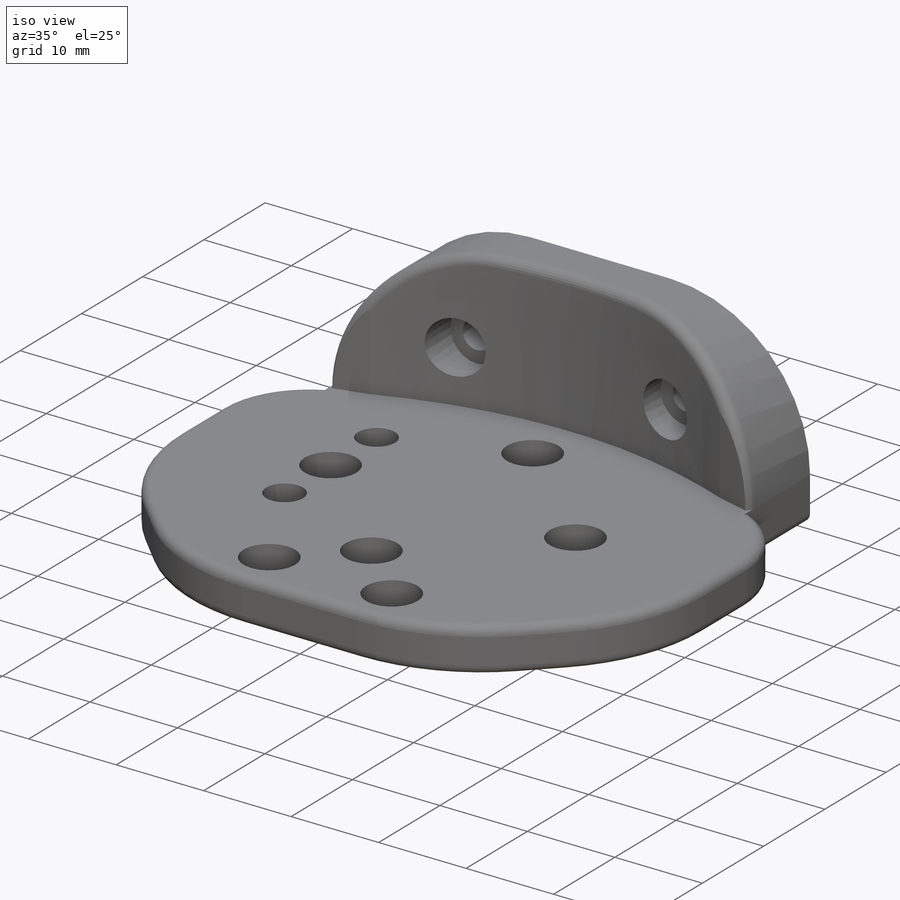
[diagram: iso view]
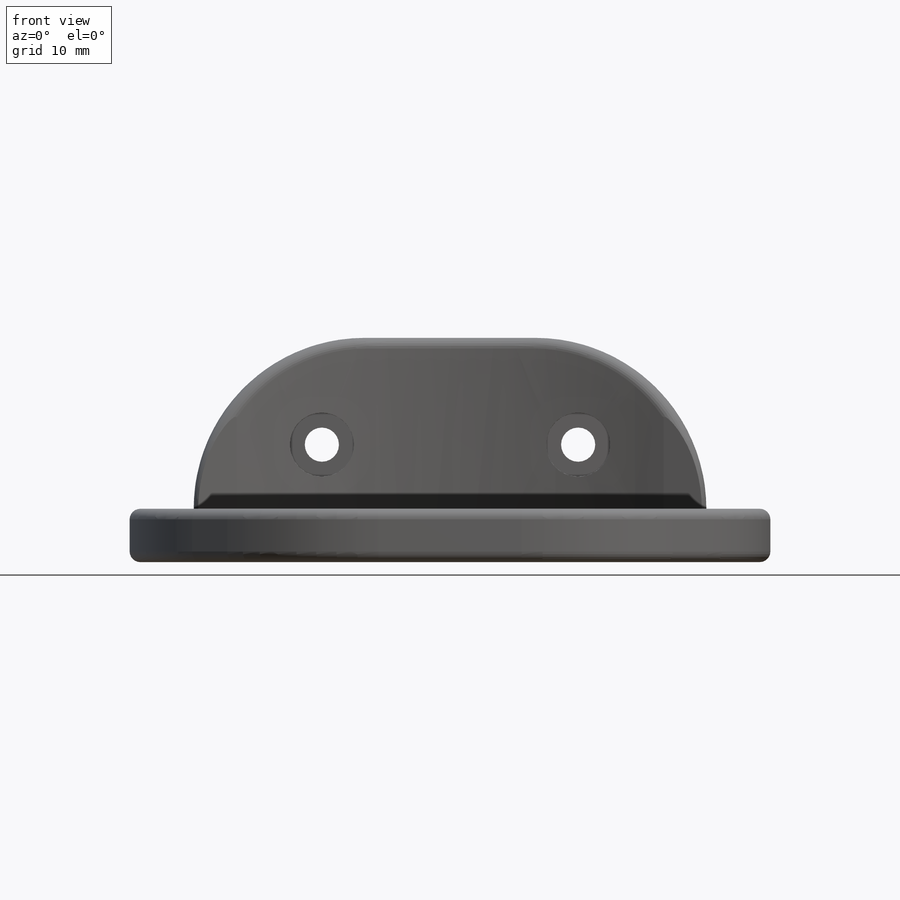
[diagram: front view]
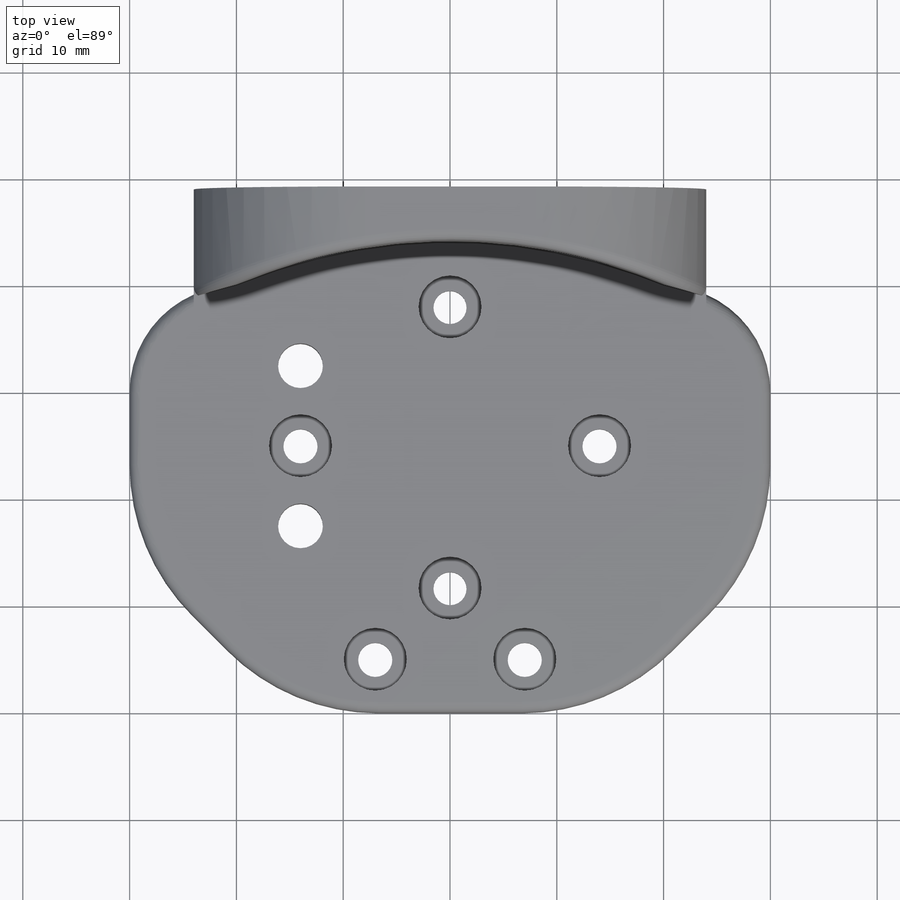
[diagram: top view]
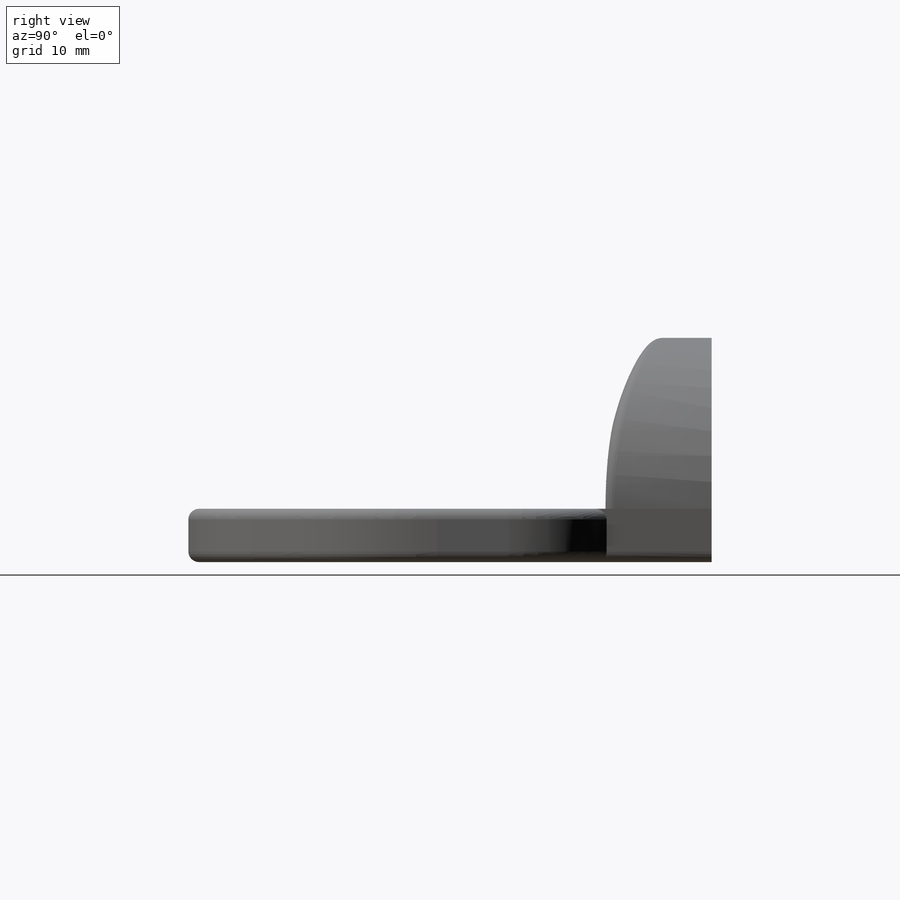
[diagram: right view]
SOLIDWORKS PART (.sldprt)
format: sldprt  version: not decoded by parser v0  size: 541,696 bytes
history: native  units: mm
features: sketch x9, cut_extrude x5, fillet x5, plane x4, extrude x3, material x1 (+9 scaffold rows collapsed)
feature tree (36):
  scaffold x9  (default folders/planes/origin — collapsed)
  material  "Material <sin especificar>"
  plane  "Alzado"
  plane  "Planta"
  plane  "Vista lateral"
  sketch  "Croquis1"  dims[c1.D5=3.2mm c1.D8=15.0mm c1.D10=20.0mm c1.D11=10.0mm c1.D1=60.0mm c1.D2=40.0mm c1.D3=7.0mm c1.D4=20.0mm c1.D6=15.0mm c1.D7=16.0mm c2.D8=15.0mm c2.D9=15.0mm c2.D12=4.0mm]
  extrude  "Saliente-Extruir1"  Depth=5mm
  extrude  "Saliente-Extruir2"  [1 undecoded]
  sketch  "Croquis1<3>"  dims[D1=5.0mm]
  sketch  "Croquis5"  dims[D1=3.1mm D2=5.9mm D3=6.0mm]
  cut_extrude  "Cortar-Extruir3"  Depth=8mm
  sketch  "Croquis6"  dims[D1=5.9mm]
  cut_extrude  "Cortar-Extruir4"  Depth=3.2mm
  sketch  "Croquis7"  dims[D1=3.1mm D2=7.0mm]
  sketch  "Croquis10"  dims[c1.D1=48.0mm c1.D2=10.05mm c1.D3=2.0mm c1.D4=6.0mm c2.D3=0.95mm]
  extrude  "Saliente-Extruir4"  Depth=16mm
  fillet  "Redondeo2"  Radius=16mm
  sketch  "Croquis11"  dims[D3=3.2mm D1=11.0mm D2=24.0mm]
  cut_extrude  "Cortar-Extruir5"  Depth=8mm
  plane  "Plano1"
  sketch  "Croquis12"  dims[D1=6.0mm]
  cut_extrude  "Cortar-Extruir6"  Depth=6mm
  sketch  "Croquis13"  dims[D1=15.0mm D2=4.2mm]
  cut_extrude  "Cortar-Extruir7"  Depth=10mm
  fillet  "Redondeo3"  Radius=1mm
  fillet  "Redondeo4"  Radius=1mm
  fillet  "Redondeo5"  Radius=1mm
  fillet  "Redondeo6"  Radius=1mm
decode coverage: 21 of 22 modeling features carry decoded parameters
note: 1 parameter value undecoded
note: suppression state not decoded; provenance and decode notes live in map.json
